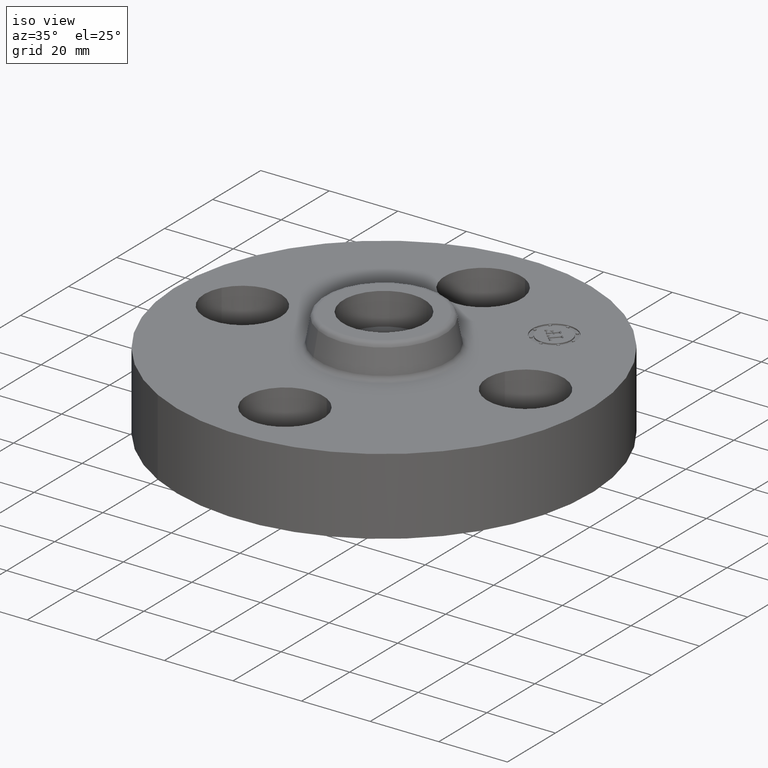
[diagram: clean part render]
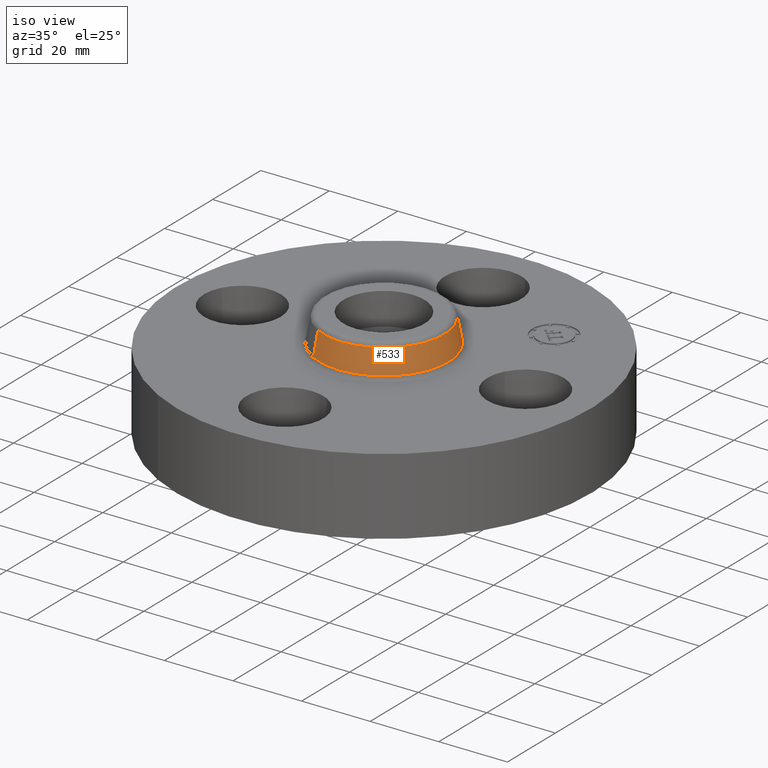
[diagram: same view with one face highlighted and labeled with its STEP entity id]
A machine part, iso view. The second image highlights one B-rep face of the part: STEP entity #533.
In plain terms, the highlighted conical surface has half-angle 10 deg.
Its self-contained STEP definition (entity closure, byte-faithful):
#469=AXIS2_PLACEMENT_3D('Circle Axis2P3D',#467,#468,$) ;
#506=AXIS2_PLACEMENT_3D('Cone Axis2P3D',#503,#504,#505) ;
#517=AXIS2_PLACEMENT_3D('Circle Axis2P3D',#515,#516,$) ;
#464=CARTESIAN_POINT('Vertex',(0.355377782267,0.650514667009,0.929581109344)) ;
#467=CARTESIAN_POINT('Axis2P3D Location',(0.,0.,0.929581109344)) ;
#471=CARTESIAN_POINT('Vertex',(-0.355377782267,-0.650514667009,0.929581109344)) ;
#503=CARTESIAN_POINT('Axis2P3D Location',(0.,0.,1.20041889066)) ;
#508=CARTESIAN_POINT('Line Origine',(0.343930057281,0.62955974698,1.065)) ;
#512=CARTESIAN_POINT('Vertex',(0.332482332294,0.608604826951,1.20041889066)) ;
#515=CARTESIAN_POINT('Axis2P3D Location',(0.,0.,1.20041889066)) ;
#519=CARTESIAN_POINT('Vertex',(-0.332482332294,-0.608604826951,1.20041889066)) ;
#522=CARTESIAN_POINT('Line Origine',(-0.343930057281,-0.62955974698,1.065)) ;
#468=DIRECTION('Axis2P3D Direction',(0.,0.,-0.0393700787402)) ;
#504=DIRECTION('Axis2P3D Direction',(0.,0.,-0.0393700787402)) ;
#505=DIRECTION('Axis2P3D XDirection',(-0.0188750212049,-0.0345504945626,0.)) ;
#509=DIRECTION('Vector Direction',(0.00327761303565,0.00599963041829,-0.03877195878)) ;
#516=DIRECTION('Axis2P3D Direction',(0.,0.,-0.0393700787402)) ;
#523=DIRECTION('Vector Direction',(-0.00327761303565,-0.00599963041829,-0.03877195878)) ;
#510=VECTOR('Line Direction',#509,0.0393700787402) ;
#524=VECTOR('Line Direction',#523,0.0393700787402) ;
#528=ORIENTED_EDGE('',*,*,#473,.F.) ;
#529=ORIENTED_EDGE('',*,*,#514,.T.) ;
#530=ORIENTED_EDGE('',*,*,#521,.T.) ;
#531=ORIENTED_EDGE('',*,*,#526,.F.) ;
#533=ADVANCED_FACE('PartBody',(#532),#507,.T.) ;
#470=CIRCLE('generated circle',#469,0.741257512693) ;
#518=CIRCLE('generated circle',#517,0.693501504451) ;
#507=CONICAL_SURFACE('Cone',#506,0.693501504451,0.174532925199) ;
#473=EDGE_CURVE('',#465,#472,#470,.T.) ;
#514=EDGE_CURVE('',#465,#513,#511,.F.) ;
#521=EDGE_CURVE('',#513,#520,#518,.T.) ;
#526=EDGE_CURVE('',#472,#520,#525,.F.) ;
#527=EDGE_LOOP('',(#528,#529,#530,#531)) ;
#532=FACE_OUTER_BOUND('',#527,.T.) ;
#511=LINE('Line',#508,#510) ;
#525=LINE('Line',#522,#524) ;
#465=VERTEX_POINT('',#464) ;
#472=VERTEX_POINT('',#471) ;
#513=VERTEX_POINT('',#512) ;
#520=VERTEX_POINT('',#519) ;